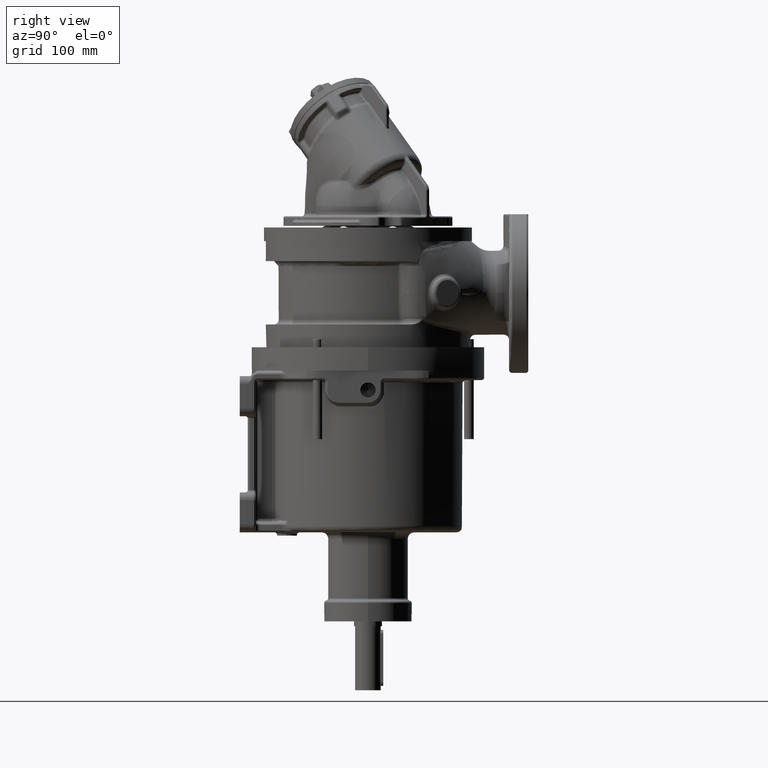
[diagram: clean part render]
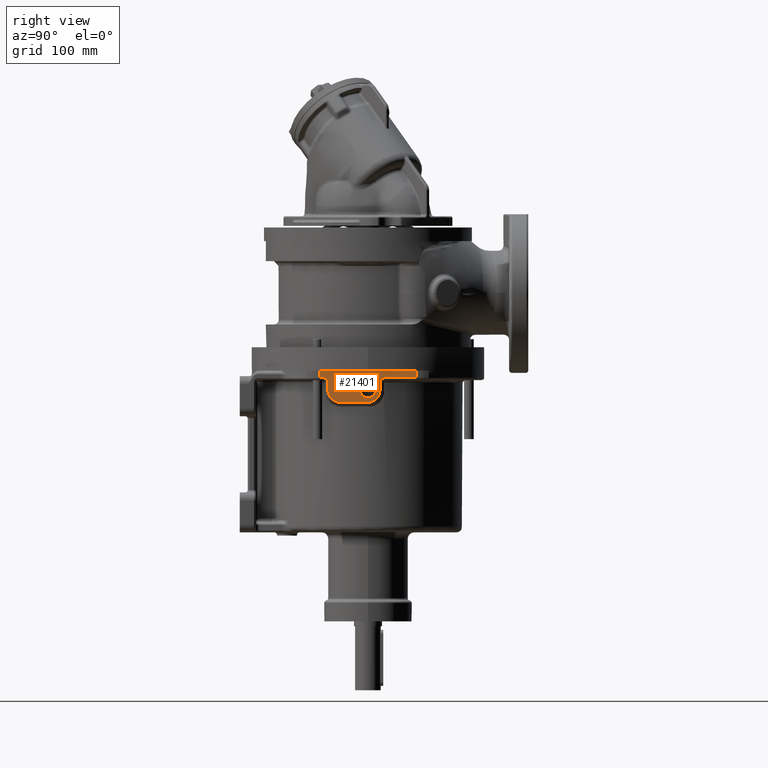
[diagram: same view with one face highlighted and labeled with its STEP entity id]
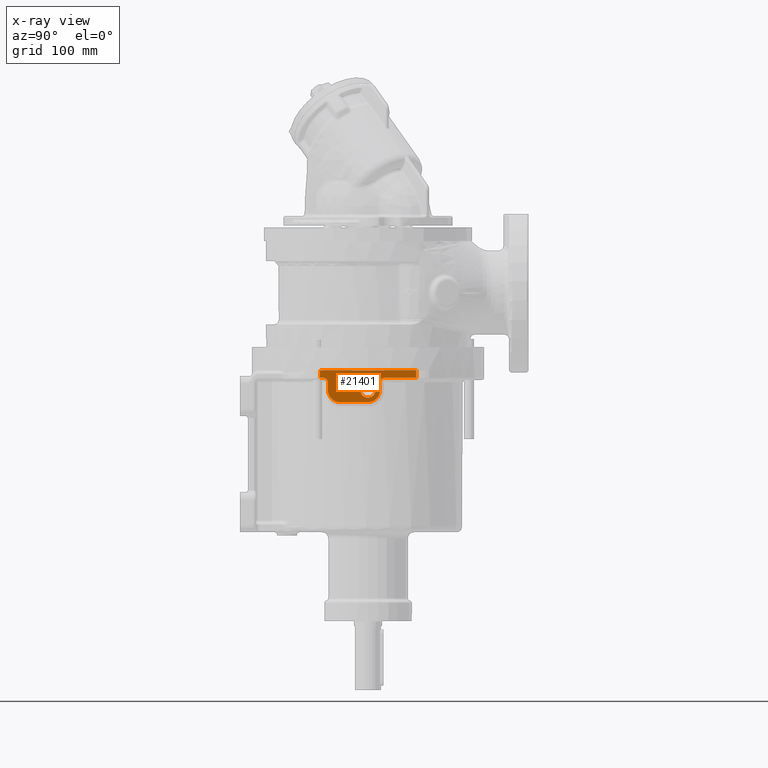
[diagram: x-ray of the same camera — body ghosted, the highlighted face saturated]
A machine part, right view. The second image highlights one B-rep face of the part: STEP entity #21401.
The next image is the same camera in x-ray: the body ghosted, the highlighted face saturated — about 0% of this face is hidden behind the body in this view.
In plain terms, the highlighted planar face has unit normal (-1, 0, 0).
Its self-contained STEP definition (entity closure, byte-faithful):
#2936=DIRECTION('',(0.E0,-4.622491031922E-10,-1.E0));
#2937=VECTOR('',#2936,9.E0);
#2938=CARTESIAN_POINT('',(1.28E2,6.017474553332E1,-1.421085471520E-14));
#2939=LINE('',#2938,#2937);
#2940=DIRECTION('',(0.E0,-1.E0,-3.615085359034E-12));
#2941=VECTOR('',#2940,3.917474553327E1);
#2942=CARTESIAN_POINT('',(1.28E2,6.017474552916E1,-9.E0));
#2943=LINE('',#2942,#2941);
#2944=CARTESIAN_POINT('',(1.28E2,2.1E1,-1.5E1));
#2945=DIRECTION('',(1.E0,0.E0,0.E0));
#2946=DIRECTION('',(0.E0,0.E0,1.E0));
#2947=AXIS2_PLACEMENT_3D('',#2944,#2945,#2946);
#2949=DIRECTION('',(0.E0,-8.151196667326E-11,-1.E0));
#2950=VECTOR('',#2949,9.500000010920E0);
#2951=CARTESIAN_POINT('',(1.28E2,1.500000000077E1,-1.499999998908E1));
#2952=LINE('',#2951,#2950);
#2953=CARTESIAN_POINT('',(1.28E2,0.E0,-2.45E1));
#2954=DIRECTION('',(-1.E0,0.E0,0.E0));
#2955=DIRECTION('',(0.E0,1.E0,0.E0));
#2956=AXIS2_PLACEMENT_3D('',#2953,#2954,#2955);
#2958=DIRECTION('',(0.E0,-1.E0,0.E0));
#2959=VECTOR('',#2958,3.5E1);
#2960=CARTESIAN_POINT('',(1.28E2,0.E0,-3.95E1));
#2961=LINE('',#2960,#2959);
#2962=CARTESIAN_POINT('',(1.28E2,-3.5E1,-2.45E1));
#2963=DIRECTION('',(-1.E0,0.E0,0.E0));
#2964=DIRECTION('',(0.E0,0.E0,-1.E0));
#2965=AXIS2_PLACEMENT_3D('',#2962,#2963,#2964);
#2967=DIRECTION('',(0.E0,-1.070316699272E-10,1.E0));
#2968=VECTOR('',#2967,9.500000013261E0);
#2969=CARTESIAN_POINT('',(1.28E2,-5.E1,-2.45E1));
#2970=LINE('',#2969,#2968);
#2971=CARTESIAN_POINT('',(1.28E2,-5.6E1,-1.5E1));
#2972=DIRECTION('',(1.E0,0.E0,0.E0));
#2973=DIRECTION('',(0.E0,1.E0,0.E0));
#2974=AXIS2_PLACEMENT_3D('',#2971,#2972,#2973);
#2976=DIRECTION('',(0.E0,-1.E0,2.021510926500E-11));
#2977=VECTOR('',#2976,4.174745532006E0);
#2978=CARTESIAN_POINT('',(1.28E2,-5.599999999715E1,-9.000000000084E0));
#2979=LINE('',#2978,#2977);
#2980=DIRECTION('',(0.E0,-4.624330548116E-10,1.E0));
#2981=VECTOR('',#2980,9.E0);
#2982=CARTESIAN_POINT('',(1.28E2,-6.017474552916E1,-9.E0));
#2983=LINE('',#2982,#2981);
#2984=DIRECTION('',(0.E0,-1.E0,0.E0));
#2985=VECTOR('',#2984,1.203494910666E2);
#2986=CARTESIAN_POINT('',(1.28E2,6.017474553332E1,-1.421085471520E-14));
#2987=LINE('',#2986,#2985);
#2988=CARTESIAN_POINT('',(1.28E2,0.E0,-2.45E1));
#2989=DIRECTION('',(1.E0,0.E0,0.E0));
#2990=DIRECTION('',(0.E0,0.E0,-1.E0));
#2991=AXIS2_PLACEMENT_3D('',#2988,#2989,#2990);
#2993=CARTESIAN_POINT('',(1.28E2,0.E0,-2.45E1));
#2994=DIRECTION('',(1.E0,0.E0,0.E0));
#2995=DIRECTION('',(0.E0,0.E0,1.E0));
#2996=AXIS2_PLACEMENT_3D('',#2993,#2994,#2995);
#15163=CARTESIAN_POINT('',(1.28E2,-6.017474553332E1,-9.E0));
#15164=VERTEX_POINT('',#15163);
#15167=CARTESIAN_POINT('',(1.28E2,-5.599999999715E1,-9.000000000084E0));
#15168=VERTEX_POINT('',#15167);
#15171=CARTESIAN_POINT('',(1.28E2,-5.E1,-1.5E1));
#15172=VERTEX_POINT('',#15171);
#15175=CARTESIAN_POINT('',(1.28E2,-5.E1,-2.45E1));
#15176=VERTEX_POINT('',#15175);
#15179=CARTESIAN_POINT('',(1.28E2,-3.5E1,-3.95E1));
#15180=VERTEX_POINT('',#15179);
#15183=CARTESIAN_POINT('',(1.28E2,0.E0,-3.95E1));
#15184=VERTEX_POINT('',#15183);
#15187=CARTESIAN_POINT('',(1.28E2,1.5E1,-2.45E1));
#15188=VERTEX_POINT('',#15187);
#15191=CARTESIAN_POINT('',(1.28E2,1.500000000077E1,-1.499999998908E1));
#15192=VERTEX_POINT('',#15191);
#15195=CARTESIAN_POINT('',(1.28E2,2.1E1,-9.E0));
#15196=VERTEX_POINT('',#15195);
#15199=CARTESIAN_POINT('',(1.28E2,6.017474552916E1,-9.E0));
#15200=VERTEX_POINT('',#15199);
#15576=CARTESIAN_POINT('',(1.28E2,0.E0,-3.4E1));
#15577=CARTESIAN_POINT('',(1.28E2,0.E0,-1.5E1));
#15578=VERTEX_POINT('',#15576);
#15579=VERTEX_POINT('',#15577);
#15643=CARTESIAN_POINT('',(1.28E2,6.017474553332E1,-1.421085471520E-14));
#15644=CARTESIAN_POINT('',(1.28E2,-6.017474553332E1,-1.421085471520E-14));
#15645=VERTEX_POINT('',#15643);
#15646=VERTEX_POINT('',#15644);
#21365=CARTESIAN_POINT('',(1.28E2,7.820485918407E1,3.E0));
#21366=DIRECTION('',(-1.E0,0.E0,0.E0));
#21367=DIRECTION('',(0.E0,-1.E0,0.E0));
#21368=AXIS2_PLACEMENT_3D('',#21365,#21366,#21367);
#21369=PLANE('',#21368);
#21371=ORIENTED_EDGE('',*,*,#21370,.T.);
#21373=ORIENTED_EDGE('',*,*,#21372,.T.);
#21375=ORIENTED_EDGE('',*,*,#21374,.T.);
#21377=ORIENTED_EDGE('',*,*,#21376,.T.);
#21379=ORIENTED_EDGE('',*,*,#21378,.T.);
#21381=ORIENTED_EDGE('',*,*,#21380,.T.);
#21383=ORIENTED_EDGE('',*,*,#21382,.T.);
#21385=ORIENTED_EDGE('',*,*,#21384,.T.);
#21387=ORIENTED_EDGE('',*,*,#21386,.T.);
#21389=ORIENTED_EDGE('',*,*,#21388,.T.);
#21391=ORIENTED_EDGE('',*,*,#21390,.T.);
#21392=ORIENTED_EDGE('',*,*,#21354,.F.);
#21393=EDGE_LOOP('',(#21371,#21373,#21375,#21377,#21379,#21381,#21383,#21385,
#21387,#21389,#21391,#21392));
#21394=FACE_OUTER_BOUND('',#21393,.F.);
#21396=ORIENTED_EDGE('',*,*,#21395,.T.);
#21398=ORIENTED_EDGE('',*,*,#21397,.T.);
#21399=EDGE_LOOP('',(#21396,#21398));
#21400=FACE_BOUND('',#21399,.F.);
#21401=ADVANCED_FACE('',(#21394,#21400),#21369,.F.);
#2948=CIRCLE('',#2947,6.E0);
#2957=CIRCLE('',#2956,1.5E1);
#2966=CIRCLE('',#2965,1.5E1);
#2975=CIRCLE('',#2974,6.E0);
#2992=CIRCLE('',#2991,9.5E0);
#2997=CIRCLE('',#2996,9.5E0);
#21354=EDGE_CURVE('',#15645,#15646,#2987,.T.);
#21370=EDGE_CURVE('',#15645,#15200,#2939,.T.);
#21372=EDGE_CURVE('',#15200,#15196,#2943,.T.);
#21374=EDGE_CURVE('',#15196,#15192,#2948,.T.);
#21376=EDGE_CURVE('',#15192,#15188,#2952,.T.);
#21378=EDGE_CURVE('',#15188,#15184,#2957,.T.);
#21380=EDGE_CURVE('',#15184,#15180,#2961,.T.);
#21382=EDGE_CURVE('',#15180,#15176,#2966,.T.);
#21384=EDGE_CURVE('',#15176,#15172,#2970,.T.);
#21386=EDGE_CURVE('',#15172,#15168,#2975,.T.);
#21388=EDGE_CURVE('',#15168,#15164,#2979,.T.);
#21390=EDGE_CURVE('',#15164,#15646,#2983,.T.);
#21395=EDGE_CURVE('',#15578,#15579,#2992,.T.);
#21397=EDGE_CURVE('',#15579,#15578,#2997,.T.);